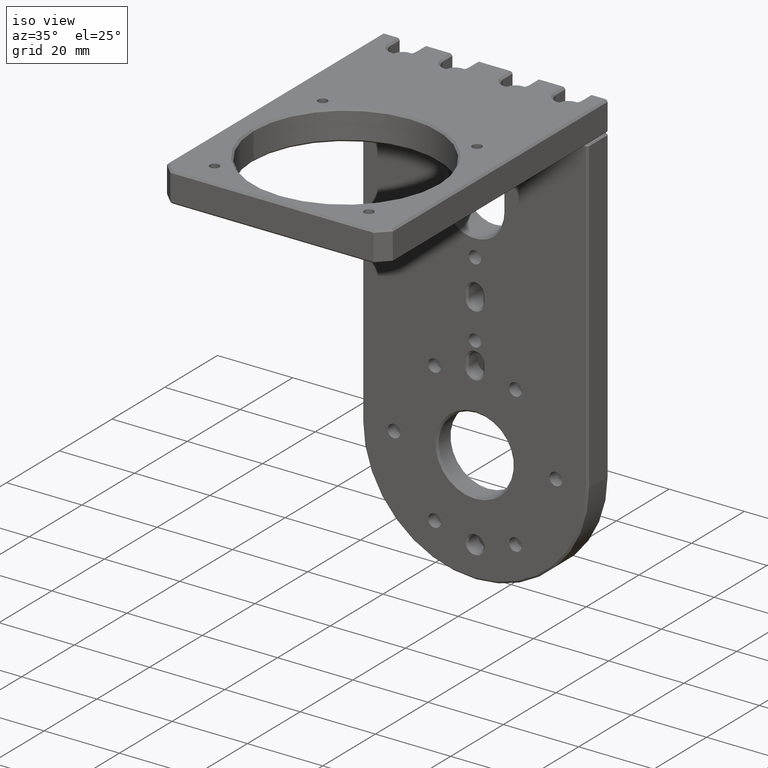
[diagram: clean part render]
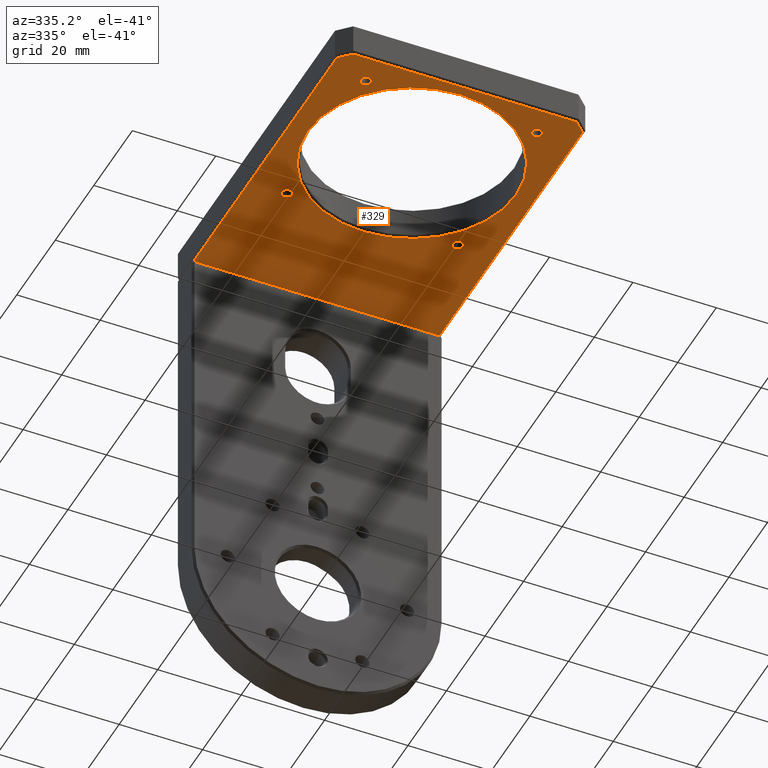
[diagram: tour spotlight — one face highlighted and labeled with its STEP entity id]
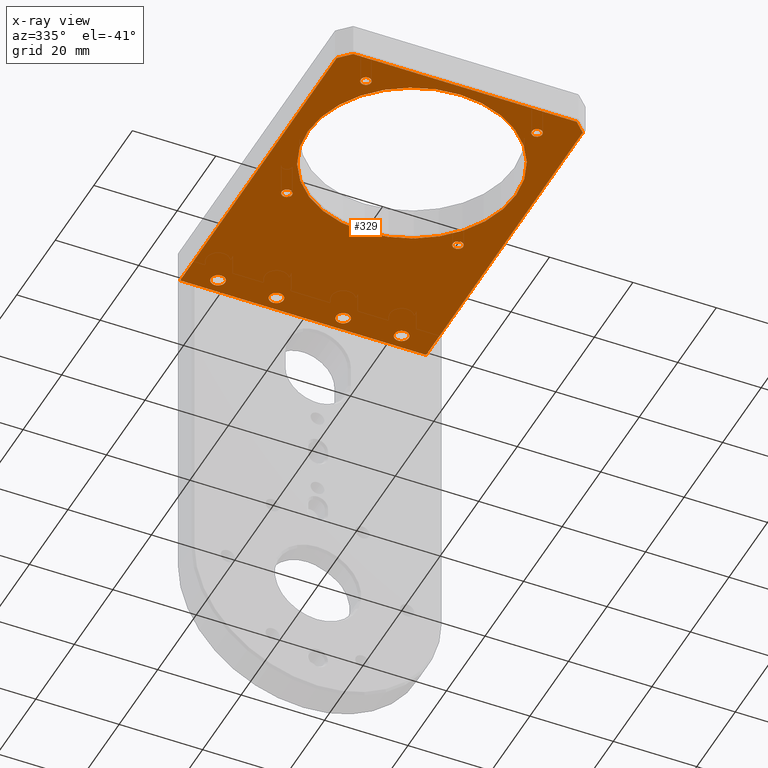
[diagram: x-ray of the same camera — body ghosted, this tour face saturated]
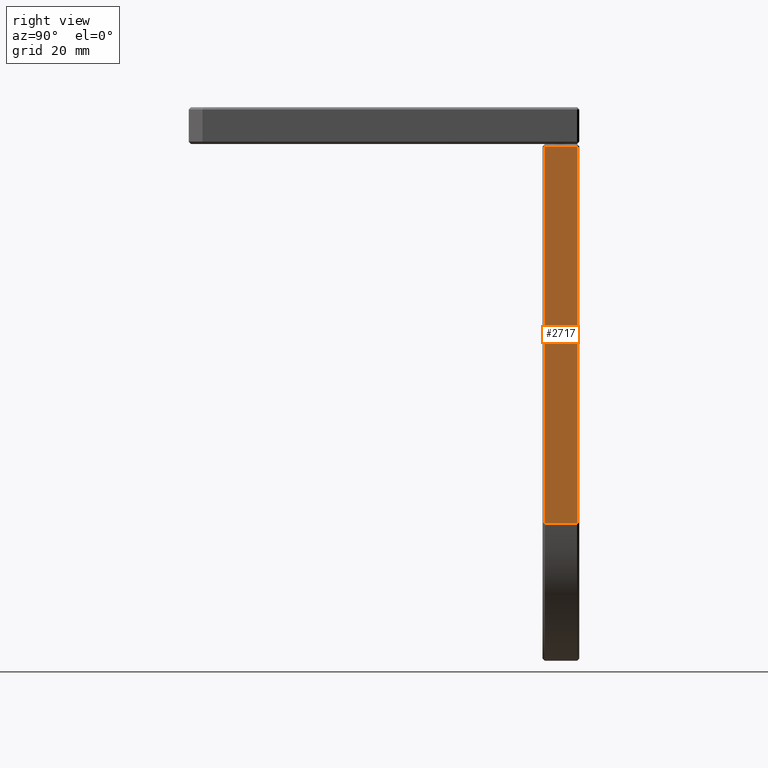
[diagram: tour spotlight — one face highlighted and labeled with its STEP entity id]
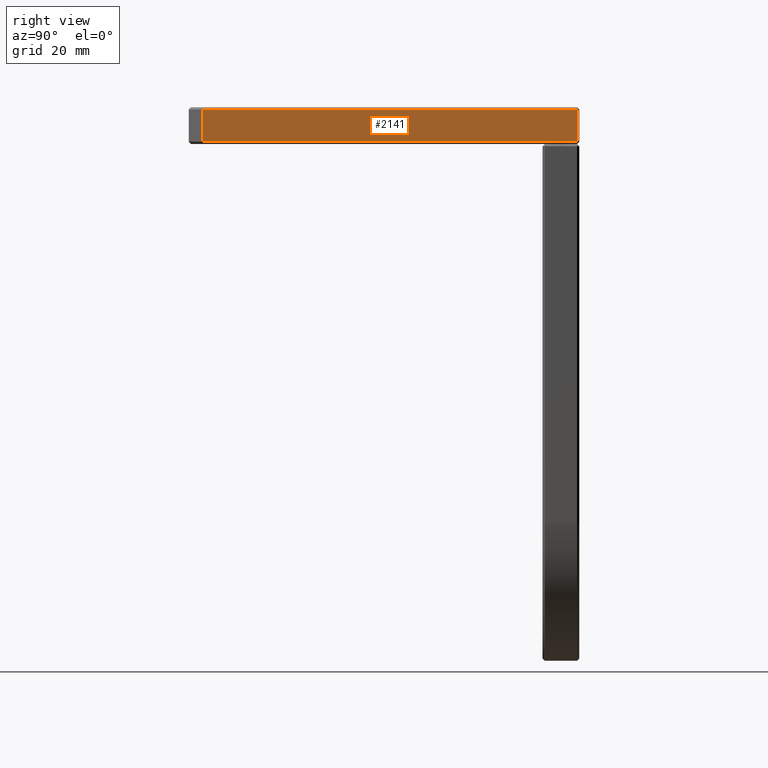
[diagram: tour spotlight — one face highlighted and labeled with its STEP entity id]
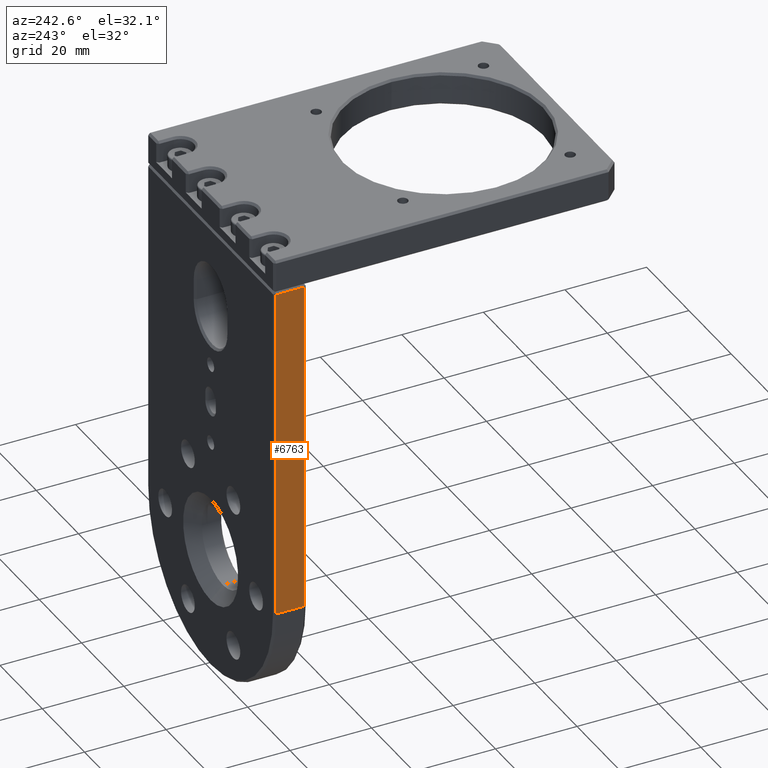
[diagram: tour spotlight — one face highlighted and labeled with its STEP entity id]
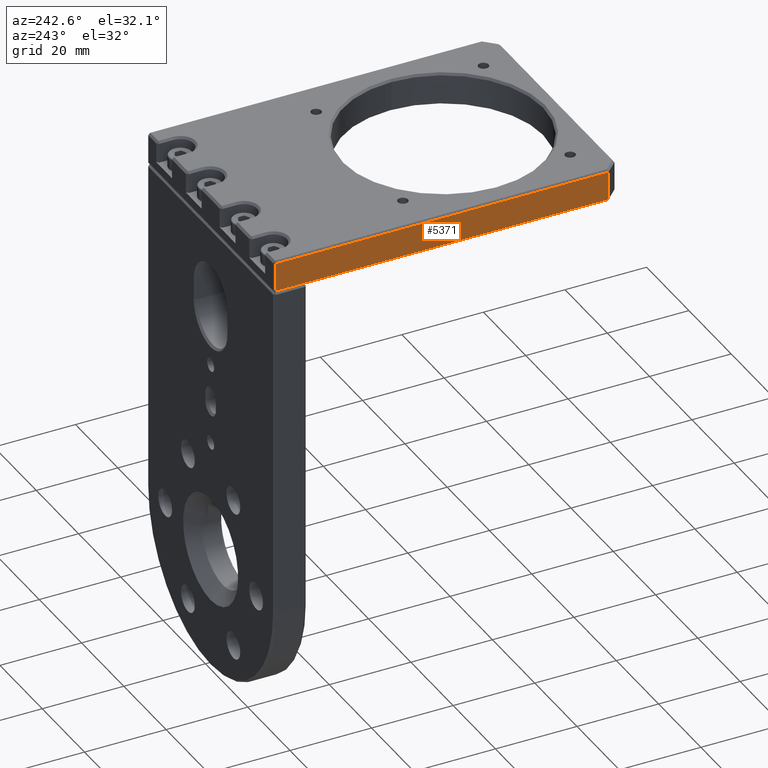
[diagram: tour spotlight — one face highlighted and labeled with its STEP entity id]
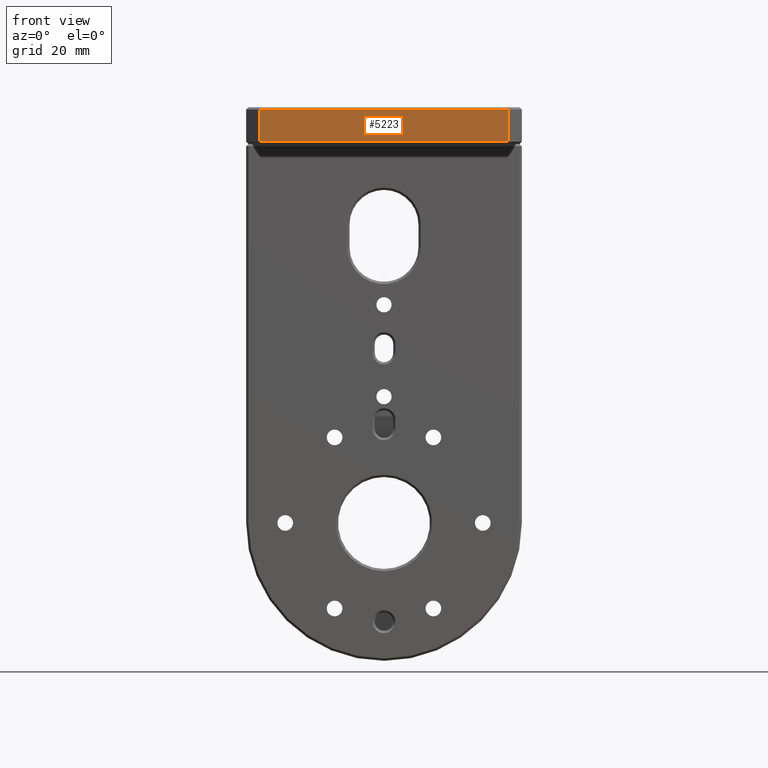
[diagram: tour spotlight — one face highlighted and labeled with its STEP entity id]
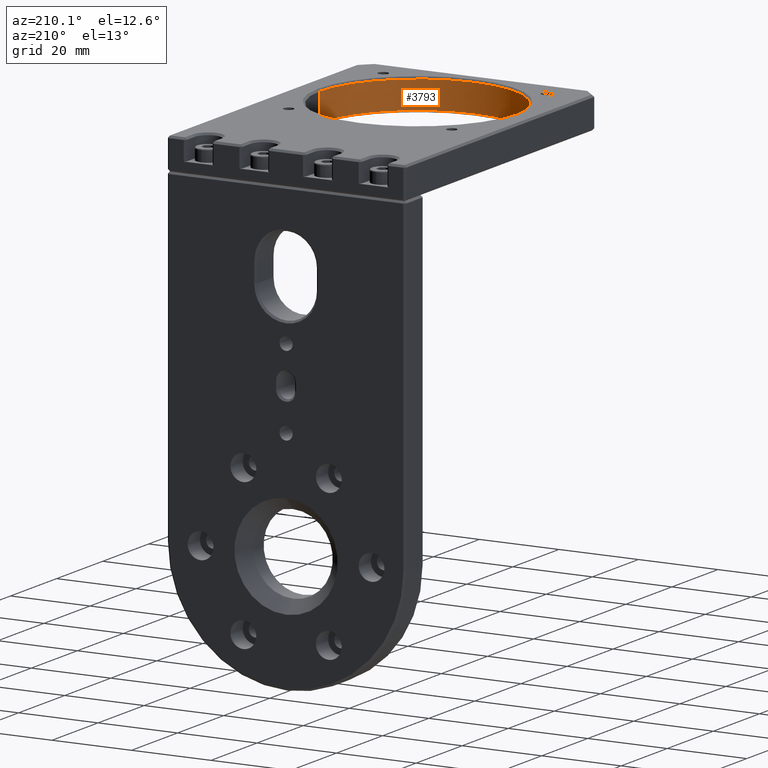
[diagram: tour spotlight — one face highlighted and labeled with its STEP entity id]
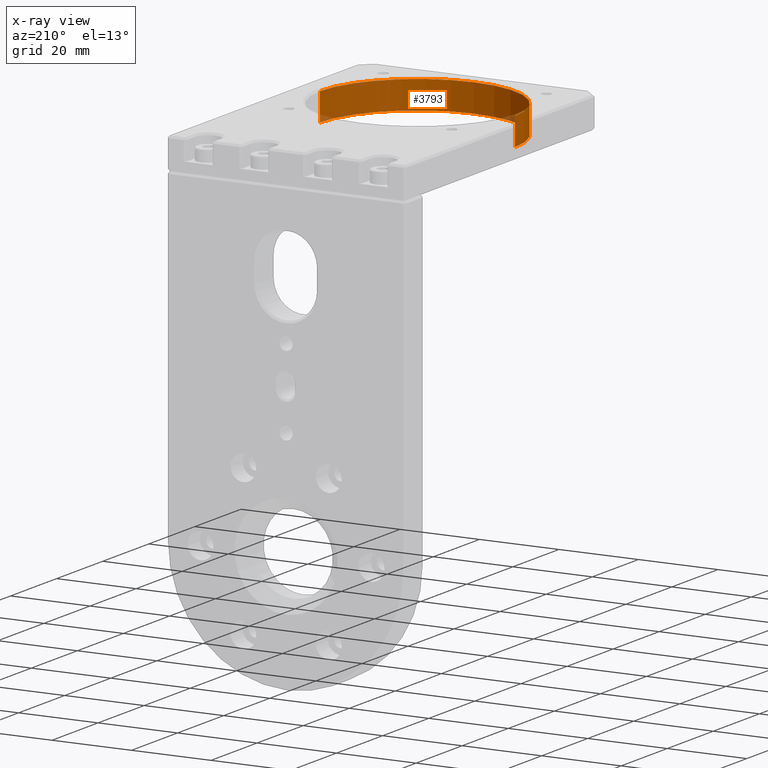
[diagram: x-ray of the same camera — body ghosted, this tour face saturated]
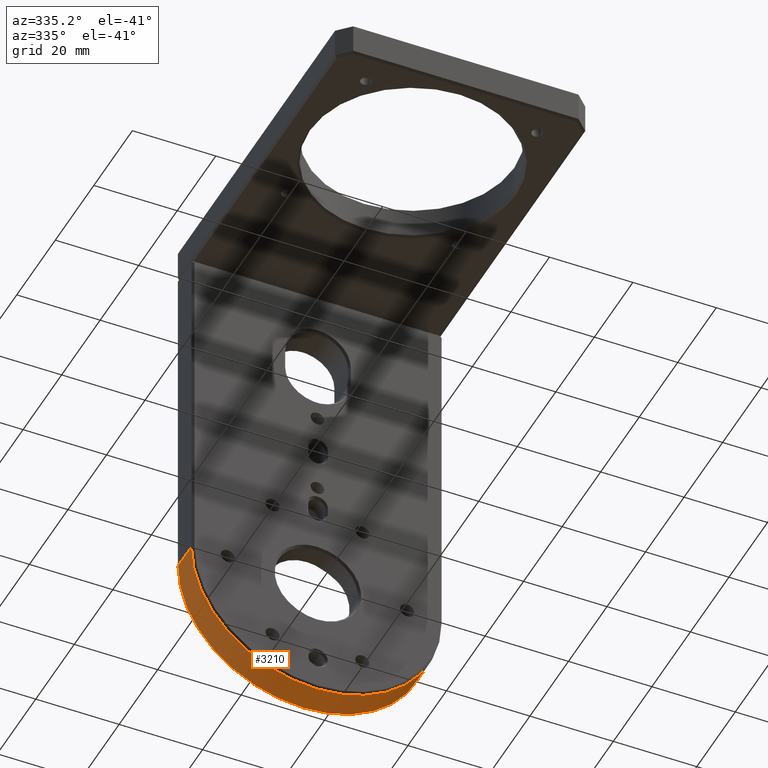
[diagram: tour spotlight — one face highlighted and labeled with its STEP entity id]
A machine part: a face-by-face anatomy tour. The part has 283 B-rep faces; the first image is the clean iso view, then the 8 largest visible faces are spotlighted one at a time (largest first), each with its STEP entity span.

Face 1 — auxiliary view, entity #329. An x-ray twin of the same camera follows (body ghosted, this face saturated) — the face is partly hidden behind the body. In plain terms, the highlighted planar face has unit normal (0, 0, -1).
Definition (entity closure, byte-faithful):
#59 = EDGE_CURVE ( 'NONE', #3716, #3810, #2310, .T. ) ;
#67 = CARTESIAN_POINT ( 'NONE',  ( 143.1860777088444365, 137.2181840001561000, 185.9764618752686545 ) ) ;
#101 = EDGE_LOOP ( 'NONE', ( #2594, #5264 ) ) ;
#131 = VERTEX_POINT ( 'NONE', #4187 ) ;
#136 = AXIS2_PLACEMENT_3D ( 'NONE', #3605, #6752, #1959 ) ;
#158 = DIRECTION ( 'NONE',  ( 0.0000000000000000000, 0.0000000000000000000, -1.000000000000000000 ) ) ;
#159 = VERTEX_POINT ( 'NONE', #489 ) ;
#166 = CARTESIAN_POINT ( 'NONE',  ( 155.6921743632543951, 63.71208734574625510, 185.9764618752686545 ) ) ;
#168 = EDGE_CURVE ( 'NONE', #7143, #6415, #3081, .T. ) ;
#259 = CIRCLE ( 'NONE', #2826, 1.700000000000007061 ) ;
#329 = ADVANCED_FACE ( 'NONE', ( #3858, #2660, #807, #3259, #2144, #3336, #2623, #6327, #5716, #4461 ), #3293, .T. ) ;
#330 = CARTESIAN_POINT ( 'NONE',  ( 108.1860777088444507, 56.71818400015607864, 185.9764618752686545 ) ) ;
#392 = EDGE_CURVE ( 'NONE', #3119, #5060, #3978, .T. ) ;
#397 = AXIS2_PLACEMENT_3D ( 'NONE', #1276, #3714, #6184 ) ;
#423 = DIRECTION ( 'NONE',  ( -1.000000000000000000, 0.0000000000000000000, 0.0000000000000000000 ) ) ;
#425 = DIRECTION ( 'NONE',  ( -0.0000000000000000000, -0.0000000000000000000, 1.000000000000000000 ) ) ;
#489 = CARTESIAN_POINT ( 'NONE',  ( 113.4299810544346059, 63.71208734574615562, 185.9764618752686545 ) ) ;
#628 = VERTEX_POINT ( 'NONE', #2526 ) ;
#673 = EDGE_CURVE ( 'NONE', #6415, #7143, #6043, .T. ) ;
#807 = FACE_BOUND ( 'NONE', #2038, .T. ) ;
#810 = VERTEX_POINT ( 'NONE', #6667 ) ;
#862 = DIRECTION ( 'NONE',  ( -0.0000000000000000000, -0.0000000000000000000, 1.000000000000000000 ) ) ;
#870 = CIRCLE ( 'NONE', #4332, 25.00000000000000711 ) ;
#871 = CARTESIAN_POINT ( 'NONE',  ( 108.3931844900310182, 56.71818400015607864, 185.9764618752686545 ) ) ;
#888 = EDGE_LOOP ( 'NONE', ( #1223, #7460 ) ) ;
#897 = AXIS2_PLACEMENT_3D ( 'NONE', #4988, #3695, #7328 ) ;
#914 = CIRCLE ( 'NONE', #6183, 1.250000000000001110 ) ;
#1015 = ORIENTED_EDGE ( 'NONE', *, *, #673, .F. ) ;
#1027 = CARTESIAN_POINT ( 'NONE',  ( 164.6860777088444365, 140.7181840001560715, 185.9764618752686545 ) ) ;
#1032 = VERTEX_POINT ( 'NONE', #1027 ) ;
#1172 = EDGE_LOOP ( 'NONE', ( #6345, #2487 ) ) ;
#1199 = ORIENTED_EDGE ( 'NONE', *, *, #3450, .T. ) ;
#1208 = CARTESIAN_POINT ( 'NONE',  ( 164.6860777088444365, 59.21818400015608574, 185.9764618752686545 ) ) ;
#1211 = CARTESIAN_POINT ( 'NONE',  ( 127.1860777088444365, 137.2181840001561000, 185.9764618752686545 ) ) ;
#1223 = ORIENTED_EDGE ( 'NONE', *, *, #1935, .F. ) ;
#1271 = CARTESIAN_POINT ( 'NONE',  ( 156.9421743632542814, 104.7242806545660159, 185.9764618752686545 ) ) ;
#1276 = CARTESIAN_POINT ( 'NONE',  ( 127.1860777088444365, 137.2181840001561000, 185.9764618752686545 ) ) ;
#1292 = AXIS2_PLACEMENT_3D ( 'NONE', #67, #7516, #5086 ) ;
#1330 = DIRECTION ( 'NONE',  ( 0.0000000000000000000, 0.0000000000000000000, -1.000000000000000000 ) ) ;
#1367 = DIRECTION ( 'NONE',  ( -0.0000000000000000000, 1.000000000000000000, 0.0000000000000000000 ) ) ;
#1395 = VERTEX_POINT ( 'NONE', #3148 ) ;
#1478 = VERTEX_POINT ( 'NONE', #4511 ) ;
#1493 = DIRECTION ( 'NONE',  ( 0.0000000000000000000, 0.0000000000000000000, -1.000000000000000000 ) ) ;
#1612 = DIRECTION ( 'NONE',  ( 1.000000000000000000, 0.0000000000000000000, 0.0000000000000000000 ) ) ;
#1705 = DIRECTION ( 'NONE',  ( -0.0000000000000000000, -0.0000000000000000000, 1.000000000000000000 ) ) ;
#1711 = CARTESIAN_POINT ( 'NONE',  ( 155.6921743632542814, 104.7242806545660159, 185.9764618752686545 ) ) ;
#1759 = EDGE_LOOP ( 'NONE', ( #1920, #4060, #2214, #4507, #3434, #2517 ) ) ;
#1805 = ORIENTED_EDGE ( 'NONE', *, *, #7638, .F. ) ;
#1839 = EDGE_CURVE ( 'NONE', #5060, #5403, #3890, .T. ) ;
#1861 = CARTESIAN_POINT ( 'NONE',  ( 115.9299810544345348, 104.7242806545659022, 185.9764618752686545 ) ) ;
#1882 = EDGE_CURVE ( 'NONE', #7108, #159, #7227, .T. ) ;
#1920 = ORIENTED_EDGE ( 'NONE', *, *, #4398, .T. ) ;
#1935 = EDGE_CURVE ( 'NONE', #6525, #628, #5419, .T. ) ;
#1959 = DIRECTION ( 'NONE',  ( 1.000000000000000000, 0.0000000000000000000, 0.0000000000000000000 ) ) ;
#1997 = CARTESIAN_POINT ( 'NONE',  ( 114.6799810544345206, 104.7242806545659022, 185.9764618752686545 ) ) ;
#2038 = EDGE_LOOP ( 'NONE', ( #6566, #6723 ) ) ;
#2127 = DIRECTION ( 'NONE',  ( 1.000000000000000000, 0.0000000000000000000, 0.0000000000000000000 ) ) ;
#2144 = FACE_BOUND ( 'NONE', #1172, .T. ) ;
#2169 = CIRCLE ( 'NONE', #2802, 1.250000000000001110 ) ;
#2214 = ORIENTED_EDGE ( 'NONE', *, *, #392, .T. ) ;
#2216 = VECTOR ( 'NONE', #5192, 1000.000000000000114 ) ;
#2228 = VECTOR ( 'NONE', #6728, 1000.000000000000000 ) ;
#2310 = CIRCLE ( 'NONE', #3709, 1.250000000000001110 ) ;
#2344 = AXIS2_PLACEMENT_3D ( 'NONE', #3255, #5098, #5879 ) ;
#2392 = CARTESIAN_POINT ( 'NONE',  ( 155.6921743632542814, 104.7242806545660159, 185.9764618752686545 ) ) ;
#2487 = ORIENTED_EDGE ( 'NONE', *, *, #7558, .T. ) ;
#2517 = ORIENTED_EDGE ( 'NONE', *, *, #6071, .T. ) ;
#2526 = CARTESIAN_POINT ( 'NONE',  ( 155.4860777088444195, 137.2181840001561000, 185.9764618752686545 ) ) ;
#2531 = CARTESIAN_POINT ( 'NONE',  ( 105.6860777088444365, 141.2181840001561000, 185.9764618752686545 ) ) ;
#2557 = CARTESIAN_POINT ( 'NONE',  ( 110.1860777088444365, 84.21818400015608574, 185.9764618752686545 ) ) ;
#2594 = ORIENTED_EDGE ( 'NONE', *, *, #6658, .T. ) ;
#2601 = EDGE_LOOP ( 'NONE', ( #3287, #1199 ) ) ;
#2623 = FACE_BOUND ( 'NONE', #7144, .T. ) ;
#2625 = VERTEX_POINT ( 'NONE', #4024 ) ;
#2660 = FACE_OUTER_BOUND ( 'NONE', #1759, .T. ) ;
#2679 = EDGE_CURVE ( 'NONE', #4437, #3119, #7403, .T. ) ;
#2705 = AXIS2_PLACEMENT_3D ( 'NONE', #5181, #158, #7551 ) ;
#2706 = CARTESIAN_POINT ( 'NONE',  ( 135.1860777088444365, 98.71818400015608574, 185.9764618752686545 ) ) ;
#2712 = CARTESIAN_POINT ( 'NONE',  ( 105.6860777088444365, 59.42529078134268161, 185.9764618752686545 ) ) ;
#2722 = EDGE_LOOP ( 'NONE', ( #3832, #1805 ) ) ;
#2730 = DIRECTION ( 'NONE',  ( -0.0000000000000000000, -0.0000000000000000000, 1.000000000000000000 ) ) ;
#2780 = VERTEX_POINT ( 'NONE', #1861 ) ;
#2802 = AXIS2_PLACEMENT_3D ( 'NONE', #166, #7524, #5710 ) ;
#2818 = CIRCLE ( 'NONE', #6425, 1.250000000000001110 ) ;
#2826 = AXIS2_PLACEMENT_3D ( 'NONE', #1211, #1330, #3768 ) ;
#2875 = CIRCLE ( 'NONE', #3767, 1.250000000000001110 ) ;
#2986 = EDGE_CURVE ( 'NONE', #810, #2780, #5572, .T. ) ;
#2997 = VERTEX_POINT ( 'NONE', #4661 ) ;
#3046 = LINE ( 'NONE', #1208, #3817 ) ;
#3081 = CIRCLE ( 'NONE', #897, 1.700000000000007061 ) ;
#3119 = VERTEX_POINT ( 'NONE', #4093 ) ;
#3148 = CARTESIAN_POINT ( 'NONE',  ( 160.1860777088444365, 84.21818400015608574, 185.9764618752686545 ) ) ;
#3237 = DIRECTION ( 'NONE',  ( -1.000000000000000000, 0.0000000000000000000, 0.0000000000000000000 ) ) ;
#3255 = CARTESIAN_POINT ( 'NONE',  ( 114.6799810544346059, 63.71208734574615562, 185.9764618752686545 ) ) ;
#3259 = FACE_BOUND ( 'NONE', #101, .T. ) ;
#3287 = ORIENTED_EDGE ( 'NONE', *, *, #1882, .T. ) ;
#3293 = PLANE ( 'NONE',  #6431 ) ;
#3336 = FACE_BOUND ( 'NONE', #2601, .T. ) ;
#3374 = DIRECTION ( 'NONE',  ( -1.000000000000000000, 0.0000000000000000000, 0.0000000000000000000 ) ) ;
#3434 = ORIENTED_EDGE ( 'NONE', *, *, #4543, .T. ) ;
#3450 = EDGE_CURVE ( 'NONE', #159, #7108, #2875, .T. ) ;
#3473 = CARTESIAN_POINT ( 'NONE',  ( 135.1860777088444365, 84.21818400015608574, 185.9764618752686545 ) ) ;
#3605 = CARTESIAN_POINT ( 'NONE',  ( 155.6921743632543951, 63.71208734574625510, 185.9764618752686545 ) ) ;
#3695 = DIRECTION ( 'NONE',  ( 0.0000000000000000000, 0.0000000000000000000, -1.000000000000000000 ) ) ;
#3709 = AXIS2_PLACEMENT_3D ( 'NONE', #2392, #1705, #7852 ) ;
#3714 = DIRECTION ( 'NONE',  ( 0.0000000000000000000, 0.0000000000000000000, -1.000000000000000000 ) ) ;
#3716 = VERTEX_POINT ( 'NONE', #7303 ) ;
#3722 = CIRCLE ( 'NONE', #136, 1.250000000000001110 ) ;
#3767 = AXIS2_PLACEMENT_3D ( 'NONE', #6387, #2730, #2127 ) ;
#3768 = DIRECTION ( 'NONE',  ( -1.000000000000000000, 0.0000000000000000000, 0.0000000000000000000 ) ) ;
#3810 = VERTEX_POINT ( 'NONE', #1271 ) ;
#3817 = VECTOR ( 'NONE', #4903, 1000.000000000000000 ) ;
#3832 = ORIENTED_EDGE ( 'NONE', *, *, #7205, .F. ) ;
#3854 = CARTESIAN_POINT ( 'NONE',  ( 157.1860777088444365, 137.2181840001561000, 185.9764618752686545 ) ) ;
#3858 = FACE_BOUND ( 'NONE', #6401, .T. ) ;
#3890 = LINE ( 'NONE', #6363, #2216 ) ;
#3978 = LINE ( 'NONE', #330, #6300 ) ;
#4016 = DIRECTION ( 'NONE',  ( 0.0000000000000000000, 0.0000000000000000000, -1.000000000000000000 ) ) ;
#4019 = EDGE_LOOP ( 'NONE', ( #1015, #6195 ) ) ;
#4024 = CARTESIAN_POINT ( 'NONE',  ( 156.9421743632543951, 63.71208734574625510, 185.9764618752686545 ) ) ;
#4060 = ORIENTED_EDGE ( 'NONE', *, *, #2679, .T. ) ;
#4093 = CARTESIAN_POINT ( 'NONE',  ( 161.9789709276578265, 56.71818400015607864, 185.9764618752686545 ) ) ;
#4114 = DIRECTION ( 'NONE',  ( 0.0000000000000000000, 0.0000000000000000000, -1.000000000000000000 ) ) ;
#4145 = EDGE_CURVE ( 'NONE', #6575, #1395, #870, .T. ) ;
#4187 = CARTESIAN_POINT ( 'NONE',  ( 114.8860777088444252, 137.2181840001561000, 185.9764618752686545 ) ) ;
#4210 = CARTESIAN_POINT ( 'NONE',  ( 165.1860777088444365, 140.7181840001560715, 185.9764618752686545 ) ) ;
#4239 = CIRCLE ( 'NONE', #397, 1.700000000000007061 ) ;
#4254 = CARTESIAN_POINT ( 'NONE',  ( 164.6860777088444365, 59.42529078134265319, 185.9764618752686545 ) ) ;
#4260 = VERTEX_POINT ( 'NONE', #4877 ) ;
#4332 = AXIS2_PLACEMENT_3D ( 'NONE', #3473, #5929, #423 ) ;
#4398 = EDGE_CURVE ( 'NONE', #1032, #4437, #3046, .T. ) ;
#4437 = VERTEX_POINT ( 'NONE', #4254 ) ;
#4461 = FACE_BOUND ( 'NONE', #888, .T. ) ;
#4473 = AXIS2_PLACEMENT_3D ( 'NONE', #5445, #4114, #6001 ) ;
#4498 = CIRCLE ( 'NONE', #5275, 25.00000000000000711 ) ;
#4507 = ORIENTED_EDGE ( 'NONE', *, *, #1839, .T. ) ;
#4511 = CARTESIAN_POINT ( 'NONE',  ( 154.4421743632543951, 63.71208734574625510, 185.9764618752686545 ) ) ;
#4543 = EDGE_CURVE ( 'NONE', #5403, #5415, #5089, .T. ) ;
#4661 = CARTESIAN_POINT ( 'NONE',  ( 111.4860777088444479, 137.2181840001561000, 185.9764618752686545 ) ) ;
#4789 = VERTEX_POINT ( 'NONE', #7154 ) ;
#4877 = CARTESIAN_POINT ( 'NONE',  ( 128.8860777088444536, 137.2181840001561000, 185.9764618752686545 ) ) ;
#4903 = DIRECTION ( 'NONE',  ( 0.0000000000000000000, -1.000000000000000000, 0.0000000000000000000 ) ) ;
#4988 = CARTESIAN_POINT ( 'NONE',  ( 143.1860777088444365, 137.2181840001561000, 185.9764618752686545 ) ) ;
#5016 = LINE ( 'NONE', #4210, #5471 ) ;
#5031 = DIRECTION ( 'NONE',  ( 0.0000000000000000000, 0.0000000000000000000, -1.000000000000000000 ) ) ;
#5060 = VERTEX_POINT ( 'NONE', #871 ) ;
#5066 = DIRECTION ( 'NONE',  ( -1.000000000000000000, 0.0000000000000000000, 0.0000000000000000000 ) ) ;
#5086 = DIRECTION ( 'NONE',  ( -1.000000000000000000, 0.0000000000000000000, 0.0000000000000000000 ) ) ;
#5089 = LINE ( 'NONE', #2531, #7687 ) ;
#5097 = CARTESIAN_POINT ( 'NONE',  ( 113.1860777088444365, 137.2181840001561000, 185.9764618752686545 ) ) ;
#5098 = DIRECTION ( 'NONE',  ( -0.0000000000000000000, -0.0000000000000000000, 1.000000000000000000 ) ) ;
#5123 = DIRECTION ( 'NONE',  ( -0.0000000000000000000, -0.0000000000000000000, 1.000000000000000000 ) ) ;
#5181 = CARTESIAN_POINT ( 'NONE',  ( 113.1860777088444365, 137.2181840001561000, 185.9764618752686545 ) ) ;
#5185 = EDGE_CURVE ( 'NONE', #628, #6525, #7946, .T. ) ;
#5192 = DIRECTION ( 'NONE',  ( -0.7071067811865459074, 0.7071067811865491270, 0.0000000000000000000 ) ) ;
#5226 = CARTESIAN_POINT ( 'NONE',  ( 114.6799810544345206, 104.7242806545659022, 185.9764618752686545 ) ) ;
#5264 = ORIENTED_EDGE ( 'NONE', *, *, #59, .T. ) ;
#5275 = AXIS2_PLACEMENT_3D ( 'NONE', #6984, #862, #3237 ) ;
#5403 = VERTEX_POINT ( 'NONE', #2712 ) ;
#5415 = VERTEX_POINT ( 'NONE', #5759 ) ;
#5419 = CIRCLE ( 'NONE', #6713, 1.700000000000007061 ) ;
#5445 = CARTESIAN_POINT ( 'NONE',  ( 157.1860777088444365, 137.2181840001561000, 185.9764618752686545 ) ) ;
#5471 = VECTOR ( 'NONE', #6842, 1000.000000000000000 ) ;
#5572 = CIRCLE ( 'NONE', #5949, 1.250000000000001110 ) ;
#5626 = CARTESIAN_POINT ( 'NONE',  ( 141.4860777088444195, 137.2181840001561000, 185.9764618752686545 ) ) ;
#5641 = ORIENTED_EDGE ( 'NONE', *, *, #7685, .T. ) ;
#5710 = DIRECTION ( 'NONE',  ( 1.000000000000000000, 0.0000000000000000000, 0.0000000000000000000 ) ) ;
#5716 = FACE_BOUND ( 'NONE', #4019, .T. ) ;
#5759 = CARTESIAN_POINT ( 'NONE',  ( 105.6860777088444365, 140.7181840001560715, 185.9764618752686545 ) ) ;
#5780 = AXIS2_PLACEMENT_3D ( 'NONE', #5097, #4016, #3374 ) ;
#5806 = EDGE_CURVE ( 'NONE', #2625, #1478, #2169, .T. ) ;
#5879 = DIRECTION ( 'NONE',  ( 1.000000000000000000, 0.0000000000000000000, 0.0000000000000000000 ) ) ;
#5929 = DIRECTION ( 'NONE',  ( -0.0000000000000000000, -0.0000000000000000000, 1.000000000000000000 ) ) ;
#5949 = AXIS2_PLACEMENT_3D ( 'NONE', #5226, #7002, #1612 ) ;
#6001 = DIRECTION ( 'NONE',  ( -1.000000000000000000, 0.0000000000000000000, 0.0000000000000000000 ) ) ;
#6043 = CIRCLE ( 'NONE', #1292, 1.700000000000007061 ) ;
#6071 = EDGE_CURVE ( 'NONE', #5415, #1032, #5016, .T. ) ;
#6084 = CARTESIAN_POINT ( 'NONE',  ( 169.5825243182510746, 64.32173739074927710, 185.9764618752686545 ) ) ;
#6165 = ORIENTED_EDGE ( 'NONE', *, *, #6949, .F. ) ;
#6170 = CIRCLE ( 'NONE', #2705, 1.699999999999993072 ) ;
#6175 = ORIENTED_EDGE ( 'NONE', *, *, #7268, .F. ) ;
#6182 = CARTESIAN_POINT ( 'NONE',  ( 144.8860777088444252, 137.2181840001561000, 185.9764618752686545 ) ) ;
#6183 = AXIS2_PLACEMENT_3D ( 'NONE', #1997, #5123, #7022 ) ;
#6184 = DIRECTION ( 'NONE',  ( -1.000000000000000000, 0.0000000000000000000, 0.0000000000000000000 ) ) ;
#6195 = ORIENTED_EDGE ( 'NONE', *, *, #168, .F. ) ;
#6300 = VECTOR ( 'NONE', #5066, 1000.000000000000000 ) ;
#6327 = FACE_BOUND ( 'NONE', #2722, .T. ) ;
#6345 = ORIENTED_EDGE ( 'NONE', *, *, #5806, .T. ) ;
#6363 = CARTESIAN_POINT ( 'NONE',  ( 100.7896310994376705, 64.32173739074947605, 185.9764618752686545 ) ) ;
#6387 = CARTESIAN_POINT ( 'NONE',  ( 114.6799810544346059, 63.71208734574615562, 185.9764618752686545 ) ) ;
#6398 = DIRECTION ( 'NONE',  ( -1.000000000000000000, 0.0000000000000000000, 0.0000000000000000000 ) ) ;
#6401 = EDGE_LOOP ( 'NONE', ( #7747, #5641 ) ) ;
#6403 = DIRECTION ( 'NONE',  ( -1.000000000000000000, 0.0000000000000000000, -0.0000000000000000000 ) ) ;
#6415 = VERTEX_POINT ( 'NONE', #6182 ) ;
#6425 = AXIS2_PLACEMENT_3D ( 'NONE', #1711, #425, #7780 ) ;
#6431 = AXIS2_PLACEMENT_3D ( 'NONE', #2706, #5031, #6403 ) ;
#6525 = VERTEX_POINT ( 'NONE', #6906 ) ;
#6566 = ORIENTED_EDGE ( 'NONE', *, *, #7694, .T. ) ;
#6575 = VERTEX_POINT ( 'NONE', #2557 ) ;
#6658 = EDGE_CURVE ( 'NONE', #3810, #3716, #2818, .T. ) ;
#6667 = CARTESIAN_POINT ( 'NONE',  ( 113.4299810544345206, 104.7242806545659022, 185.9764618752686545 ) ) ;
#6713 = AXIS2_PLACEMENT_3D ( 'NONE', #3854, #1493, #6398 ) ;
#6723 = ORIENTED_EDGE ( 'NONE', *, *, #2986, .T. ) ;
#6728 = DIRECTION ( 'NONE',  ( -0.7071067811865491270, -0.7071067811865459074, 0.0000000000000000000 ) ) ;
#6752 = DIRECTION ( 'NONE',  ( -0.0000000000000000000, -0.0000000000000000000, 1.000000000000000000 ) ) ;
#6813 = CIRCLE ( 'NONE', #5780, 1.699999999999993072 ) ;
#6842 = DIRECTION ( 'NONE',  ( 1.000000000000000000, 0.0000000000000000000, 0.0000000000000000000 ) ) ;
#6906 = CARTESIAN_POINT ( 'NONE',  ( 158.8860777088444536, 137.2181840001561000, 185.9764618752686545 ) ) ;
#6949 = EDGE_CURVE ( 'NONE', #131, #2997, #6813, .T. ) ;
#6984 = CARTESIAN_POINT ( 'NONE',  ( 135.1860777088444365, 84.21818400015608574, 185.9764618752686545 ) ) ;
#7002 = DIRECTION ( 'NONE',  ( -0.0000000000000000000, -0.0000000000000000000, 1.000000000000000000 ) ) ;
#7022 = DIRECTION ( 'NONE',  ( 1.000000000000000000, 0.0000000000000000000, 0.0000000000000000000 ) ) ;
#7108 = VERTEX_POINT ( 'NONE', #7206 ) ;
#7143 = VERTEX_POINT ( 'NONE', #5626 ) ;
#7144 = EDGE_LOOP ( 'NONE', ( #6165, #6175 ) ) ;
#7154 = CARTESIAN_POINT ( 'NONE',  ( 125.4860777088444337, 137.2181840001561000, 185.9764618752686545 ) ) ;
#7205 = EDGE_CURVE ( 'NONE', #4260, #4789, #259, .T. ) ;
#7206 = CARTESIAN_POINT ( 'NONE',  ( 115.9299810544346059, 63.71208734574615562, 185.9764618752686545 ) ) ;
#7227 = CIRCLE ( 'NONE', #2344, 1.250000000000001110 ) ;
#7268 = EDGE_CURVE ( 'NONE', #2997, #131, #6170, .T. ) ;
#7303 = CARTESIAN_POINT ( 'NONE',  ( 154.4421743632542814, 104.7242806545660159, 185.9764618752686545 ) ) ;
#7328 = DIRECTION ( 'NONE',  ( -1.000000000000000000, 0.0000000000000000000, 0.0000000000000000000 ) ) ;
#7403 = LINE ( 'NONE', #6084, #2228 ) ;
#7460 = ORIENTED_EDGE ( 'NONE', *, *, #5185, .F. ) ;
#7516 = DIRECTION ( 'NONE',  ( 0.0000000000000000000, 0.0000000000000000000, -1.000000000000000000 ) ) ;
#7524 = DIRECTION ( 'NONE',  ( -0.0000000000000000000, -0.0000000000000000000, 1.000000000000000000 ) ) ;
#7551 = DIRECTION ( 'NONE',  ( -1.000000000000000000, 0.0000000000000000000, 0.0000000000000000000 ) ) ;
#7558 = EDGE_CURVE ( 'NONE', #1478, #2625, #3722, .T. ) ;
#7638 = EDGE_CURVE ( 'NONE', #4789, #4260, #4239, .T. ) ;
#7685 = EDGE_CURVE ( 'NONE', #1395, #6575, #4498, .T. ) ;
#7687 = VECTOR ( 'NONE', #1367, 1000.000000000000000 ) ;
#7694 = EDGE_CURVE ( 'NONE', #2780, #810, #914, .T. ) ;
#7747 = ORIENTED_EDGE ( 'NONE', *, *, #4145, .T. ) ;
#7780 = DIRECTION ( 'NONE',  ( 1.000000000000000000, 0.0000000000000000000, 0.0000000000000000000 ) ) ;
#7852 = DIRECTION ( 'NONE',  ( 1.000000000000000000, 0.0000000000000000000, 0.0000000000000000000 ) ) ;
#7946 = CIRCLE ( 'NONE', #4473, 1.700000000000007061 ) ;

Face 2 — right view, entity #2717. In plain terms, the highlighted planar face has unit normal (1, 0, -0).
Definition (entity closure, byte-faithful):
#87 = CARTESIAN_POINT ( 'NONE',  ( 165.1860777088458292, 141.2181840001566684, 185.4764618752668923 ) ) ;
#461 = LINE ( 'NONE', #2157, #6696 ) ;
#529 = DIRECTION ( 'NONE',  ( -3.491481338843133355E-15, 1.000000000000000000, 3.657132581846951845E-29 ) ) ;
#649 = CARTESIAN_POINT ( 'NONE',  ( 165.1860777088458292, 141.2181840001566684, 185.9764618752668923 ) ) ;
#692 = DIRECTION ( 'NONE',  ( 1.047444401652940007E-14, 0.0000000000000000000, 1.000000000000000000 ) ) ;
#825 = VECTOR ( 'NONE', #692, 1000.000000000000000 ) ;
#1337 = LINE ( 'NONE', #3219, #825 ) ;
#1504 = ORIENTED_EDGE ( 'NONE', *, *, #5245, .T. ) ;
#1738 = PLANE ( 'NONE',  #4266 ) ;
#1775 = EDGE_CURVE ( 'NONE', #2461, #4824, #1337, .T. ) ;
#1803 = DIRECTION ( 'NONE',  ( 3.491481338843133355E-15, -1.000000000000000000, -3.657132581846951845E-29 ) ) ;
#2157 = CARTESIAN_POINT ( 'NONE',  ( 165.1860777088458576, 133.7181840001566968, 185.9764618752668923 ) ) ;
#2323 = EDGE_LOOP ( 'NONE', ( #4892, #5695, #1504, #3257 ) ) ;
#2461 = VERTEX_POINT ( 'NONE', #3898 ) ;
#2632 = DIRECTION ( 'NONE',  ( 3.491481338843133355E-15, -1.000000000000000000, -3.657132581846951845E-29 ) ) ;
#2717 = ADVANCED_FACE ( 'NONE', ( #5995 ), #1738, .T. ) ;
#3215 = VERTEX_POINT ( 'NONE', #4134 ) ;
#3219 = CARTESIAN_POINT ( 'NONE',  ( 165.1860777088458292, 140.7181840001566968, 185.9764618752668923 ) ) ;
#3257 = ORIENTED_EDGE ( 'NONE', *, *, #7875, .T. ) ;
#3594 = VECTOR ( 'NONE', #1803, 1000.000000000000000 ) ;
#3654 = DIRECTION ( 'NONE',  ( 1.000000000000000000, 3.491481338843133355E-15, -1.047444401652940007E-14 ) ) ;
#3898 = CARTESIAN_POINT ( 'NONE',  ( 165.1860777088449765, 140.7181840001566968, 103.4864618752668690 ) ) ;
#3961 = CARTESIAN_POINT ( 'NONE',  ( 165.1860777088458292, 140.7181840001566968, 185.4764618752668923 ) ) ;
#4118 = DIRECTION ( 'NONE',  ( -1.047444401652940007E-14, -0.0000000000000000000, -1.000000000000000000 ) ) ;
#4134 = CARTESIAN_POINT ( 'NONE',  ( 165.1860777088458576, 133.7181840001566968, 185.4764618752668923 ) ) ;
#4266 = AXIS2_PLACEMENT_3D ( 'NONE', #649, #3654, #529 ) ;
#4741 = CARTESIAN_POINT ( 'NONE',  ( 165.1860777088450050, 133.7181840001566968, 103.4864618752668690 ) ) ;
#4824 = VERTEX_POINT ( 'NONE', #3961 ) ;
#4892 = ORIENTED_EDGE ( 'NONE', *, *, #7549, .F. ) ;
#4974 = VECTOR ( 'NONE', #2632, 1000.000000000000000 ) ;
#5245 = EDGE_CURVE ( 'NONE', #4824, #3215, #6737, .T. ) ;
#5695 = ORIENTED_EDGE ( 'NONE', *, *, #1775, .T. ) ;
#5995 = FACE_OUTER_BOUND ( 'NONE', #2323, .T. ) ;
#6696 = VECTOR ( 'NONE', #4118, 1000.000000000000000 ) ;
#6737 = LINE ( 'NONE', #87, #4974 ) ;
#7107 = VERTEX_POINT ( 'NONE', #4741 ) ;
#7348 = CARTESIAN_POINT ( 'NONE',  ( 165.1860777088449765, 141.2181840001566684, 103.4864618752668690 ) ) ;
#7422 = LINE ( 'NONE', #7348, #3594 ) ;
#7549 = EDGE_CURVE ( 'NONE', #2461, #7107, #7422, .T. ) ;
#7875 = EDGE_CURVE ( 'NONE', #3215, #7107, #461, .T. ) ;

Face 3 — right view, entity #2141. In plain terms, the highlighted planar face has unit normal (-1, 0, 0).
Definition (entity closure, byte-faithful):
#75 = VERTEX_POINT ( 'NONE', #4709 ) ;
#319 = DIRECTION ( 'NONE',  ( 0.0000000000000000000, 0.0000000000000000000, 1.000000000000000000 ) ) ;
#569 = LINE ( 'NONE', #4983, #3435 ) ;
#570 = DIRECTION ( 'NONE',  ( 0.0000000000000000000, 1.000000000000000000, 0.0000000000000000000 ) ) ;
#1439 = LINE ( 'NONE', #4488, #4021 ) ;
#1476 = ORIENTED_EDGE ( 'NONE', *, *, #7288, .T. ) ;
#1620 = EDGE_CURVE ( 'NONE', #75, #5523, #5926, .T. ) ;
#1924 = DIRECTION ( 'NONE',  ( 0.0000000000000000000, -1.000000000000000000, 0.0000000000000000000 ) ) ;
#2141 = ADVANCED_FACE ( 'NONE', ( #3913 ), #6427, .F. ) ;
#2322 = VECTOR ( 'NONE', #319, 1000.000000000000000 ) ;
#3041 = CARTESIAN_POINT ( 'NONE',  ( 165.1860777088444365, 140.7181840001560715, 193.4764618752686545 ) ) ;
#3098 = ORIENTED_EDGE ( 'NONE', *, *, #5618, .T. ) ;
#3348 = EDGE_CURVE ( 'NONE', #7555, #5305, #1439, .T. ) ;
#3435 = VECTOR ( 'NONE', #5478, 1000.000000000000000 ) ;
#3913 = FACE_OUTER_BOUND ( 'NONE', #6584, .T. ) ;
#4021 = VECTOR ( 'NONE', #1924, 1000.000000000000000 ) ;
#4488 = CARTESIAN_POINT ( 'NONE',  ( 165.1860777088444365, 56.21818400015607864, 193.4764618752686545 ) ) ;
#4545 = VECTOR ( 'NONE', #570, 1000.000000000000000 ) ;
#4606 = DIRECTION ( 'NONE',  ( 0.0000000000000000000, 0.0000000000000000000, 1.000000000000000000 ) ) ;
#4707 = CARTESIAN_POINT ( 'NONE',  ( 165.1860777088444365, 140.7181840001560715, 186.4764618752686829 ) ) ;
#4709 = CARTESIAN_POINT ( 'NONE',  ( 165.1860777088444365, 59.21818400015608574, 186.4764618752686829 ) ) ;
#4983 = CARTESIAN_POINT ( 'NONE',  ( 165.1860777088444365, 59.21818400015608574, 193.9764618752686545 ) ) ;
#5056 = LINE ( 'NONE', #5742, #2322 ) ;
#5161 = AXIS2_PLACEMENT_3D ( 'NONE', #7027, #7709, #4606 ) ;
#5305 = VERTEX_POINT ( 'NONE', #7371 ) ;
#5478 = DIRECTION ( 'NONE',  ( 0.0000000000000000000, 0.0000000000000000000, -1.000000000000000000 ) ) ;
#5523 = VERTEX_POINT ( 'NONE', #4707 ) ;
#5618 = EDGE_CURVE ( 'NONE', #5305, #75, #569, .T. ) ;
#5742 = CARTESIAN_POINT ( 'NONE',  ( 165.1860777088444365, 140.7181840001560715, 193.9764618752686545 ) ) ;
#5926 = LINE ( 'NONE', #5997, #4545 ) ;
#5997 = CARTESIAN_POINT ( 'NONE',  ( 165.1860777088444365, 141.2181840001561000, 186.4764618752686829 ) ) ;
#6427 = PLANE ( 'NONE',  #5161 ) ;
#6584 = EDGE_LOOP ( 'NONE', ( #3098, #7230, #1476, #7280 ) ) ;
#7027 = CARTESIAN_POINT ( 'NONE',  ( 165.1860777088444365, 56.21818400015607864, 193.9764618752686545 ) ) ;
#7230 = ORIENTED_EDGE ( 'NONE', *, *, #1620, .T. ) ;
#7280 = ORIENTED_EDGE ( 'NONE', *, *, #3348, .T. ) ;
#7288 = EDGE_CURVE ( 'NONE', #5523, #7555, #5056, .T. ) ;
#7371 = CARTESIAN_POINT ( 'NONE',  ( 165.1860777088444365, 59.21818400015608574, 193.4764618752686545 ) ) ;
#7555 = VERTEX_POINT ( 'NONE', #3041 ) ;
#7709 = DIRECTION ( 'NONE',  ( -1.000000000000000000, 0.0000000000000000000, 0.0000000000000000000 ) ) ;

Face 4 — auxiliary view, entity #6763. In plain terms, the highlighted planar face has unit normal (-1, -0, 0).
Definition (entity closure, byte-faithful):
#216 = ORIENTED_EDGE ( 'NONE', *, *, #1761, .T. ) ;
#583 = VERTEX_POINT ( 'NONE', #1281 ) ;
#1048 = CARTESIAN_POINT ( 'NONE',  ( 105.1860777088450050, 133.7181840001564694, 103.4864618752675085 ) ) ;
#1112 = EDGE_LOOP ( 'NONE', ( #1126, #1525, #216, #7048 ) ) ;
#1126 = ORIENTED_EDGE ( 'NONE', *, *, #5872, .T. ) ;
#1265 = DIRECTION ( 'NONE',  ( 3.491481338843133355E-15, -1.000000000000000000, -3.657132581846951845E-29 ) ) ;
#1281 = CARTESIAN_POINT ( 'NONE',  ( 105.1860777088450050, 133.7181840001564694, 103.4864618752675085 ) ) ;
#1525 = ORIENTED_EDGE ( 'NONE', *, *, #2527, .T. ) ;
#1608 = VECTOR ( 'NONE', #1823, 1000.000000000000000 ) ;
#1761 = EDGE_CURVE ( 'NONE', #4426, #583, #3058, .T. ) ;
#1788 = CARTESIAN_POINT ( 'NONE',  ( 105.1860777088449765, 141.2181840001564694, 103.4864618752675085 ) ) ;
#1823 = DIRECTION ( 'NONE',  ( 3.491481338843133355E-15, -1.000000000000000000, -3.657132581846951845E-29 ) ) ;
#2026 = VECTOR ( 'NONE', #2220, 1000.000000000000000 ) ;
#2108 = DIRECTION ( 'NONE',  ( -1.047444401652940007E-14, -0.0000000000000000000, -1.000000000000000000 ) ) ;
#2220 = DIRECTION ( 'NONE',  ( -3.491481338843133355E-15, 1.000000000000000000, 3.657132581846951845E-29 ) ) ;
#2524 = VERTEX_POINT ( 'NONE', #3936 ) ;
#2527 = EDGE_CURVE ( 'NONE', #2524, #4426, #6330, .T. ) ;
#3058 = LINE ( 'NONE', #6851, #1608 ) ;
#3531 = LINE ( 'NONE', #1048, #5886 ) ;
#3627 = FACE_OUTER_BOUND ( 'NONE', #1112, .T. ) ;
#3936 = CARTESIAN_POINT ( 'NONE',  ( 105.1860777088458292, 140.7181840001564694, 185.4764618752675460 ) ) ;
#4159 = VERTEX_POINT ( 'NONE', #6860 ) ;
#4173 = CARTESIAN_POINT ( 'NONE',  ( 105.1860777088449765, 140.7181840001564694, 103.4864618752675085 ) ) ;
#4174 = CARTESIAN_POINT ( 'NONE',  ( 105.1860777088458292, 141.2181840001564694, 185.4764618752675460 ) ) ;
#4426 = VERTEX_POINT ( 'NONE', #4173 ) ;
#4483 = AXIS2_PLACEMENT_3D ( 'NONE', #1788, #7413, #1265 ) ;
#5310 = LINE ( 'NONE', #4174, #2026 ) ;
#5870 = EDGE_CURVE ( 'NONE', #583, #4159, #3531, .T. ) ;
#5872 = EDGE_CURVE ( 'NONE', #4159, #2524, #5310, .T. ) ;
#5886 = VECTOR ( 'NONE', #5913, 1000.000000000000000 ) ;
#5913 = DIRECTION ( 'NONE',  ( 1.047444401652940007E-14, 0.0000000000000000000, 1.000000000000000000 ) ) ;
#6005 = PLANE ( 'NONE',  #4483 ) ;
#6330 = LINE ( 'NONE', #6933, #7608 ) ;
#6763 = ADVANCED_FACE ( 'NONE', ( #3627 ), #6005, .T. ) ;
#6851 = CARTESIAN_POINT ( 'NONE',  ( 105.1860777088449765, 141.2181840001564694, 103.4864618752675085 ) ) ;
#6860 = CARTESIAN_POINT ( 'NONE',  ( 105.1860777088458576, 133.7181840001564694, 185.4764618752675460 ) ) ;
#6933 = CARTESIAN_POINT ( 'NONE',  ( 105.1860777088449765, 140.7181840001564694, 103.4864618752675085 ) ) ;
#7048 = ORIENTED_EDGE ( 'NONE', *, *, #5870, .T. ) ;
#7413 = DIRECTION ( 'NONE',  ( -1.000000000000000000, -3.491481338843133355E-15, 1.047444401652940007E-14 ) ) ;
#7608 = VECTOR ( 'NONE', #2108, 1000.000000000000000 ) ;

Face 5 — auxiliary view, entity #5371. In plain terms, the highlighted planar face has unit normal (1, 0, 0).
Definition (entity closure, byte-faithful):
#94 = VECTOR ( 'NONE', #772, 1000.000000000000000 ) ;
#181 = VECTOR ( 'NONE', #7572, 1000.000000000000000 ) ;
#334 = CARTESIAN_POINT ( 'NONE',  ( 105.1860777088444365, 56.21818400015607864, 193.9764618752686545 ) ) ;
#340 = LINE ( 'NONE', #6416, #2813 ) ;
#772 = DIRECTION ( 'NONE',  ( 0.0000000000000000000, 1.000000000000000000, 0.0000000000000000000 ) ) ;
#1030 = ORIENTED_EDGE ( 'NONE', *, *, #5277, .T. ) ;
#1148 = EDGE_LOOP ( 'NONE', ( #6661, #3477, #5020, #1030 ) ) ;
#1547 = EDGE_CURVE ( 'NONE', #5973, #6692, #2232, .T. ) ;
#1987 = LINE ( 'NONE', #5036, #94 ) ;
#2152 = VERTEX_POINT ( 'NONE', #2842 ) ;
#2156 = CARTESIAN_POINT ( 'NONE',  ( 105.1860777088444365, 140.7181840001560715, 186.4764618752686829 ) ) ;
#2232 = LINE ( 'NONE', #3863, #181 ) ;
#2813 = VECTOR ( 'NONE', #3349, 1000.000000000000000 ) ;
#2842 = CARTESIAN_POINT ( 'NONE',  ( 105.1860777088444365, 59.21818400015611417, 193.4764618752686545 ) ) ;
#3095 = EDGE_CURVE ( 'NONE', #5129, #2152, #7037, .T. ) ;
#3349 = DIRECTION ( 'NONE',  ( 0.0000000000000000000, -1.000000000000000000, 0.0000000000000000000 ) ) ;
#3379 = VECTOR ( 'NONE', #7762, 1000.000000000000000 ) ;
#3477 = ORIENTED_EDGE ( 'NONE', *, *, #3987, .T. ) ;
#3862 = PLANE ( 'NONE',  #6003 ) ;
#3863 = CARTESIAN_POINT ( 'NONE',  ( 105.1860777088444365, 140.7181840001560715, 193.9764618752686545 ) ) ;
#3983 = DIRECTION ( 'NONE',  ( 1.000000000000000000, 0.0000000000000000000, 0.0000000000000000000 ) ) ;
#3987 = EDGE_CURVE ( 'NONE', #6692, #5129, #340, .T. ) ;
#5020 = ORIENTED_EDGE ( 'NONE', *, *, #3095, .T. ) ;
#5036 = CARTESIAN_POINT ( 'NONE',  ( 105.1860777088444365, 56.21818400015607864, 193.4764618752686545 ) ) ;
#5129 = VERTEX_POINT ( 'NONE', #6429 ) ;
#5277 = EDGE_CURVE ( 'NONE', #2152, #5973, #1987, .T. ) ;
#5371 = ADVANCED_FACE ( 'NONE', ( #7054 ), #3862, .F. ) ;
#5946 = CARTESIAN_POINT ( 'NONE',  ( 105.1860777088444365, 59.21818400015611417, 193.9764618752686545 ) ) ;
#5973 = VERTEX_POINT ( 'NONE', #7878 ) ;
#6003 = AXIS2_PLACEMENT_3D ( 'NONE', #334, #3983, #7091 ) ;
#6416 = CARTESIAN_POINT ( 'NONE',  ( 105.1860777088444365, 59.21818400015611417, 186.4764618752686829 ) ) ;
#6429 = CARTESIAN_POINT ( 'NONE',  ( 105.1860777088444365, 59.21818400015611417, 186.4764618752686829 ) ) ;
#6661 = ORIENTED_EDGE ( 'NONE', *, *, #1547, .T. ) ;
#6692 = VERTEX_POINT ( 'NONE', #2156 ) ;
#7037 = LINE ( 'NONE', #5946, #3379 ) ;
#7054 = FACE_OUTER_BOUND ( 'NONE', #1148, .T. ) ;
#7091 = DIRECTION ( 'NONE',  ( 0.0000000000000000000, 0.0000000000000000000, -1.000000000000000000 ) ) ;
#7572 = DIRECTION ( 'NONE',  ( 0.0000000000000000000, 0.0000000000000000000, -1.000000000000000000 ) ) ;
#7762 = DIRECTION ( 'NONE',  ( 0.0000000000000000000, 0.0000000000000000000, 1.000000000000000000 ) ) ;
#7878 = CARTESIAN_POINT ( 'NONE',  ( 105.1860777088444365, 140.7181840001560715, 193.4764618752686545 ) ) ;

Face 6 — front view, entity #5223. In plain terms, the highlighted planar face has unit normal (0, 1, 0).
Definition (entity closure, byte-faithful):
#48 = FACE_OUTER_BOUND ( 'NONE', #6836, .T. ) ;
#670 = CARTESIAN_POINT ( 'NONE',  ( 105.1860777088444365, 56.21818400015607864, 193.4764618752686545 ) ) ;
#700 = CARTESIAN_POINT ( 'NONE',  ( 108.1860777088444507, 56.21818400015607864, 193.4764618752686545 ) ) ;
#975 = EDGE_CURVE ( 'NONE', #3488, #5212, #3868, .T. ) ;
#1145 = EDGE_CURVE ( 'NONE', #1201, #6365, #4558, .T. ) ;
#1201 = VERTEX_POINT ( 'NONE', #7898 ) ;
#1212 = ORIENTED_EDGE ( 'NONE', *, *, #6393, .T. ) ;
#1594 = DIRECTION ( 'NONE',  ( 1.000000000000000000, 0.0000000000000000000, 0.0000000000000000000 ) ) ;
#1695 = EDGE_CURVE ( 'NONE', #6365, #3488, #4984, .T. ) ;
#1815 = VECTOR ( 'NONE', #5002, 1000.000000000000000 ) ;
#1949 = CARTESIAN_POINT ( 'NONE',  ( 105.1860777088444365, 56.21818400015607864, 193.9764618752686545 ) ) ;
#2210 = CARTESIAN_POINT ( 'NONE',  ( 162.1860777088444081, 56.21818400015607864, 193.4764618752686545 ) ) ;
#2618 = CARTESIAN_POINT ( 'NONE',  ( 162.1860777088444081, 56.21818400015607864, 193.9764618752686545 ) ) ;
#3004 = DIRECTION ( 'NONE',  ( 0.0000000000000000000, 0.0000000000000000000, -1.000000000000000000 ) ) ;
#3396 = ORIENTED_EDGE ( 'NONE', *, *, #975, .T. ) ;
#3488 = VERTEX_POINT ( 'NONE', #2210 ) ;
#3645 = VECTOR ( 'NONE', #4950, 1000.000000000000000 ) ;
#3868 = LINE ( 'NONE', #670, #1815 ) ;
#4318 = CARTESIAN_POINT ( 'NONE',  ( 108.1860777088444507, 56.21818400015607864, 193.9764618752686545 ) ) ;
#4368 = VECTOR ( 'NONE', #1594, 1000.000000000000000 ) ;
#4443 = ORIENTED_EDGE ( 'NONE', *, *, #1695, .T. ) ;
#4558 = LINE ( 'NONE', #5119, #4368 ) ;
#4610 = CARTESIAN_POINT ( 'NONE',  ( 162.1860777088444081, 56.21818400015607864, 186.4764618752686829 ) ) ;
#4950 = DIRECTION ( 'NONE',  ( 0.0000000000000000000, 0.0000000000000000000, 1.000000000000000000 ) ) ;
#4984 = LINE ( 'NONE', #2618, #3645 ) ;
#4993 = DIRECTION ( 'NONE',  ( 0.0000000000000000000, -0.0000000000000000000, 1.000000000000000000 ) ) ;
#5002 = DIRECTION ( 'NONE',  ( -1.000000000000000000, 0.0000000000000000000, 0.0000000000000000000 ) ) ;
#5119 = CARTESIAN_POINT ( 'NONE',  ( 162.1860777088444081, 56.21818400015607864, 186.4764618752686829 ) ) ;
#5212 = VERTEX_POINT ( 'NONE', #700 ) ;
#5223 = ADVANCED_FACE ( 'NONE', ( #48 ), #6859, .F. ) ;
#5766 = AXIS2_PLACEMENT_3D ( 'NONE', #1949, #6285, #4993 ) ;
#6106 = LINE ( 'NONE', #4318, #6497 ) ;
#6285 = DIRECTION ( 'NONE',  ( 0.0000000000000000000, 1.000000000000000000, 0.0000000000000000000 ) ) ;
#6335 = ORIENTED_EDGE ( 'NONE', *, *, #1145, .T. ) ;
#6365 = VERTEX_POINT ( 'NONE', #4610 ) ;
#6393 = EDGE_CURVE ( 'NONE', #5212, #1201, #6106, .T. ) ;
#6497 = VECTOR ( 'NONE', #3004, 1000.000000000000000 ) ;
#6836 = EDGE_LOOP ( 'NONE', ( #1212, #6335, #4443, #3396 ) ) ;
#6859 = PLANE ( 'NONE',  #5766 ) ;
#7898 = CARTESIAN_POINT ( 'NONE',  ( 108.1860777088444507, 56.21818400015607864, 186.4764618752686545 ) ) ;

Face 7 — auxiliary view, entity #3793. An x-ray twin of the same camera follows (body ghosted, this face saturated) — the face is partly hidden behind the body. In plain terms, the highlighted cylindrical surface (partial cylindrical patch) has radius 24.5 mm, axis along (-0, -0, -1).
Definition (entity closure, byte-faithful):
#95 = CYLINDRICAL_SURFACE ( 'NONE', #6930, 24.49999999999999289 ) ;
#296 = CARTESIAN_POINT ( 'NONE',  ( 135.1860777088444365, 84.21818400015608574, 186.4764618752686545 ) ) ;
#370 = AXIS2_PLACEMENT_3D ( 'NONE', #2610, #3244, #5054 ) ;
#495 = CARTESIAN_POINT ( 'NONE',  ( 110.6860777088444507, 84.21818400015608574, 193.4764618752686545 ) ) ;
#627 = CIRCLE ( 'NONE', #370, 24.49999999999999289 ) ;
#629 = DIRECTION ( 'NONE',  ( -1.000000000000000000, 0.0000000000000000000, 0.0000000000000000000 ) ) ;
#981 = DIRECTION ( 'NONE',  ( -1.000000000000000000, 0.0000000000000000000, 0.0000000000000000000 ) ) ;
#1082 = AXIS2_PLACEMENT_3D ( 'NONE', #296, #7134, #981 ) ;
#1242 = CARTESIAN_POINT ( 'NONE',  ( 159.6860777088444365, 84.21818400015608574, 193.4764618752686545 ) ) ;
#1523 = EDGE_CURVE ( 'NONE', #2916, #1866, #2621, .T. ) ;
#1531 = CARTESIAN_POINT ( 'NONE',  ( 110.6860777088444507, 84.21818400015608574, 186.4764618752686545 ) ) ;
#1635 = EDGE_CURVE ( 'NONE', #5186, #1866, #7809, .T. ) ;
#1704 = CARTESIAN_POINT ( 'NONE',  ( 110.6860777088444507, 84.21818400015608574, 193.9764618752686545 ) ) ;
#1866 = VERTEX_POINT ( 'NONE', #1531 ) ;
#2047 = DIRECTION ( 'NONE',  ( -0.0000000000000000000, -0.0000000000000000000, -1.000000000000000000 ) ) ;
#2610 = CARTESIAN_POINT ( 'NONE',  ( 135.1860777088444365, 84.21818400015608574, 193.4764618752686545 ) ) ;
#2621 = CIRCLE ( 'NONE', #1082, 24.49999999999999289 ) ;
#2649 = LINE ( 'NONE', #7548, #6275 ) ;
#2866 = DIRECTION ( 'NONE',  ( -0.0000000000000000000, -0.0000000000000000000, -1.000000000000000000 ) ) ;
#2916 = VERTEX_POINT ( 'NONE', #5095 ) ;
#3212 = ORIENTED_EDGE ( 'NONE', *, *, #1635, .F. ) ;
#3244 = DIRECTION ( 'NONE',  ( 0.0000000000000000000, 0.0000000000000000000, 1.000000000000000000 ) ) ;
#3793 = ADVANCED_FACE ( 'NONE', ( #4360 ), #95, .F. ) ;
#3998 = ORIENTED_EDGE ( 'NONE', *, *, #6215, .T. ) ;
#4360 = FACE_OUTER_BOUND ( 'NONE', #4534, .T. ) ;
#4417 = VERTEX_POINT ( 'NONE', #1242 ) ;
#4418 = VECTOR ( 'NONE', #2866, 1000.000000000000000 ) ;
#4534 = EDGE_LOOP ( 'NONE', ( #3998, #4925, #7145, #3212 ) ) ;
#4683 = EDGE_CURVE ( 'NONE', #4417, #2916, #2649, .T. ) ;
#4925 = ORIENTED_EDGE ( 'NONE', *, *, #4683, .T. ) ;
#5054 = DIRECTION ( 'NONE',  ( -1.000000000000000000, 0.0000000000000000000, 0.0000000000000000000 ) ) ;
#5095 = CARTESIAN_POINT ( 'NONE',  ( 159.6860777088444365, 84.21818400015608574, 186.4764618752686545 ) ) ;
#5186 = VERTEX_POINT ( 'NONE', #495 ) ;
#6136 = CARTESIAN_POINT ( 'NONE',  ( 135.1860777088444365, 84.21818400015608574, 193.9764618752686545 ) ) ;
#6215 = EDGE_CURVE ( 'NONE', #5186, #4417, #627, .T. ) ;
#6275 = VECTOR ( 'NONE', #2047, 1000.000000000000000 ) ;
#6930 = AXIS2_PLACEMENT_3D ( 'NONE', #6136, #7418, #629 ) ;
#7134 = DIRECTION ( 'NONE',  ( -0.0000000000000000000, -0.0000000000000000000, -1.000000000000000000 ) ) ;
#7145 = ORIENTED_EDGE ( 'NONE', *, *, #1523, .T. ) ;
#7418 = DIRECTION ( 'NONE',  ( -0.0000000000000000000, -0.0000000000000000000, -1.000000000000000000 ) ) ;
#7548 = CARTESIAN_POINT ( 'NONE',  ( 159.6860777088444365, 84.21818400015608574, 193.9764618752686545 ) ) ;
#7809 = LINE ( 'NONE', #1704, #4418 ) ;

Face 8 — auxiliary view, entity #3210. In plain terms, the highlighted cylindrical surface (partial cylindrical patch) has radius 30 mm, axis along (0, -1, -0).
Definition (entity closure, byte-faithful):
#262 = CARTESIAN_POINT ( 'NONE',  ( 135.1860777088449765, 140.7181840001565831, 103.4864618752671959 ) ) ;
#344 = ORIENTED_EDGE ( 'NONE', *, *, #6385, .T. ) ;
#440 = ORIENTED_EDGE ( 'NONE', *, *, #3937, .T. ) ;
#500 = VERTEX_POINT ( 'NONE', #2183 ) ;
#518 = CYLINDRICAL_SURFACE ( 'NONE', #7110, 30.00000000000000000 ) ;
#583 = VERTEX_POINT ( 'NONE', #1281 ) ;
#639 = DIRECTION ( 'NONE',  ( 3.491481338843133355E-15, -1.000000000000000000, -3.657132581846951845E-29 ) ) ;
#1216 = EDGE_LOOP ( 'NONE', ( #3521, #440, #3684, #344, #5510 ) ) ;
#1281 = CARTESIAN_POINT ( 'NONE',  ( 105.1860777088450050, 133.7181840001564694, 103.4864618752675085 ) ) ;
#1529 = CIRCLE ( 'NONE', #3190, 30.00000000000000000 ) ;
#1608 = VECTOR ( 'NONE', #1823, 1000.000000000000000 ) ;
#1761 = EDGE_CURVE ( 'NONE', #4426, #583, #3058, .T. ) ;
#1802 = DIRECTION ( 'NONE',  ( -3.491481338843133355E-15, 1.000000000000000000, 3.657132581846951845E-29 ) ) ;
#1803 = DIRECTION ( 'NONE',  ( 3.491481338843133355E-15, -1.000000000000000000, -3.657132581846951845E-29 ) ) ;
#1823 = DIRECTION ( 'NONE',  ( 3.491481338843133355E-15, -1.000000000000000000, -3.657132581846951845E-29 ) ) ;
#1994 = AXIS2_PLACEMENT_3D ( 'NONE', #4362, #1802, #2407 ) ;
#2183 = CARTESIAN_POINT ( 'NONE',  ( 135.1860777088446923, 133.7181840001565831, 73.48646187526719586 ) ) ;
#2407 = DIRECTION ( 'NONE',  ( 1.017704439239726881E-14, 0.0000000000000000000, 1.000000000000000000 ) ) ;
#2454 = AXIS2_PLACEMENT_3D ( 'NONE', #3559, #5422, #7869 ) ;
#2461 = VERTEX_POINT ( 'NONE', #3898 ) ;
#3058 = LINE ( 'NONE', #6851, #1608 ) ;
#3190 = AXIS2_PLACEMENT_3D ( 'NONE', #262, #7580, #4595 ) ;
#3210 = ADVANCED_FACE ( 'NONE', ( #5986 ), #518, .T. ) ;
#3521 = ORIENTED_EDGE ( 'NONE', *, *, #1761, .F. ) ;
#3559 = CARTESIAN_POINT ( 'NONE',  ( 135.1860777088450050, 133.7181840001565831, 103.4864618752671959 ) ) ;
#3594 = VECTOR ( 'NONE', #1803, 1000.000000000000000 ) ;
#3684 = ORIENTED_EDGE ( 'NONE', *, *, #7549, .T. ) ;
#3898 = CARTESIAN_POINT ( 'NONE',  ( 165.1860777088449765, 140.7181840001566968, 103.4864618752668690 ) ) ;
#3937 = EDGE_CURVE ( 'NONE', #4426, #2461, #1529, .T. ) ;
#4044 = CIRCLE ( 'NONE', #1994, 30.00000000000000000 ) ;
#4173 = CARTESIAN_POINT ( 'NONE',  ( 105.1860777088449765, 140.7181840001564694, 103.4864618752675085 ) ) ;
#4362 = CARTESIAN_POINT ( 'NONE',  ( 135.1860777088450050, 133.7181840001565831, 103.4864618752671959 ) ) ;
#4426 = VERTEX_POINT ( 'NONE', #4173 ) ;
#4595 = DIRECTION ( 'NONE',  ( 1.017704439239726881E-14, 0.0000000000000000000, 1.000000000000000000 ) ) ;
#4741 = CARTESIAN_POINT ( 'NONE',  ( 165.1860777088450050, 133.7181840001566968, 103.4864618752668690 ) ) ;
#4902 = DIRECTION ( 'NONE',  ( 1.017704439239726881E-14, 0.0000000000000000000, 1.000000000000000000 ) ) ;
#5422 = DIRECTION ( 'NONE',  ( -3.491481338843133355E-15, 1.000000000000000000, 3.657132581846951845E-29 ) ) ;
#5510 = ORIENTED_EDGE ( 'NONE', *, *, #7391, .T. ) ;
#5986 = FACE_OUTER_BOUND ( 'NONE', #1216, .T. ) ;
#6146 = CARTESIAN_POINT ( 'NONE',  ( 135.1860777088449765, 141.2181840001565831, 103.4864618752671959 ) ) ;
#6385 = EDGE_CURVE ( 'NONE', #7107, #500, #4044, .T. ) ;
#6565 = CIRCLE ( 'NONE', #2454, 30.00000000000000000 ) ;
#6851 = CARTESIAN_POINT ( 'NONE',  ( 105.1860777088449765, 141.2181840001564694, 103.4864618752675085 ) ) ;
#7107 = VERTEX_POINT ( 'NONE', #4741 ) ;
#7110 = AXIS2_PLACEMENT_3D ( 'NONE', #6146, #639, #4902 ) ;
#7348 = CARTESIAN_POINT ( 'NONE',  ( 165.1860777088449765, 141.2181840001566684, 103.4864618752668690 ) ) ;
#7391 = EDGE_CURVE ( 'NONE', #500, #583, #6565, .T. ) ;
#7422 = LINE ( 'NONE', #7348, #3594 ) ;
#7549 = EDGE_CURVE ( 'NONE', #2461, #7107, #7422, .T. ) ;
#7580 = DIRECTION ( 'NONE',  ( 3.491481338843133355E-15, -1.000000000000000000, -3.657132581846951845E-29 ) ) ;
#7869 = DIRECTION ( 'NONE',  ( 1.017704439239726881E-14, 0.0000000000000000000, 1.000000000000000000 ) ) ;